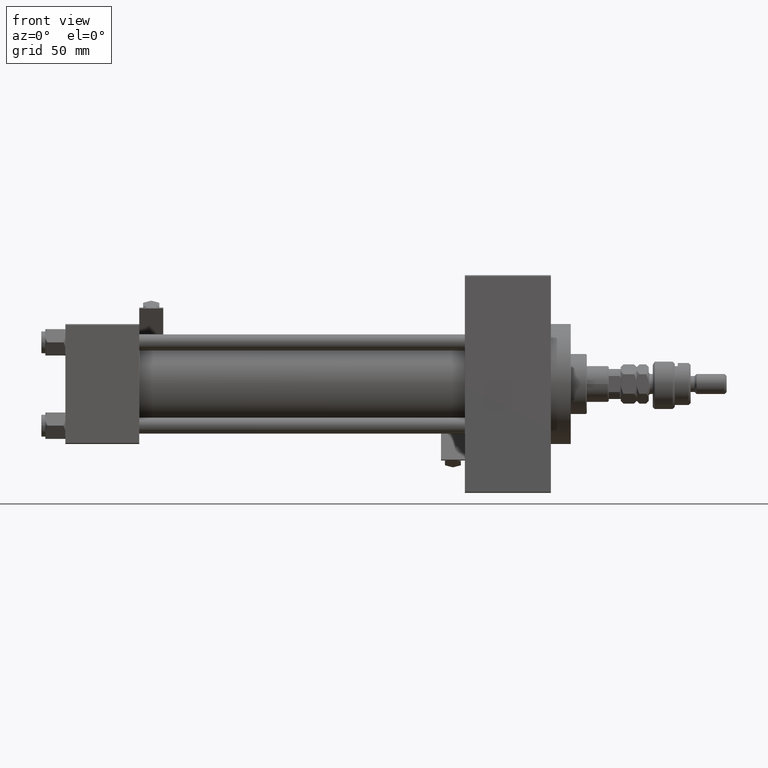
[diagram: clean part render]
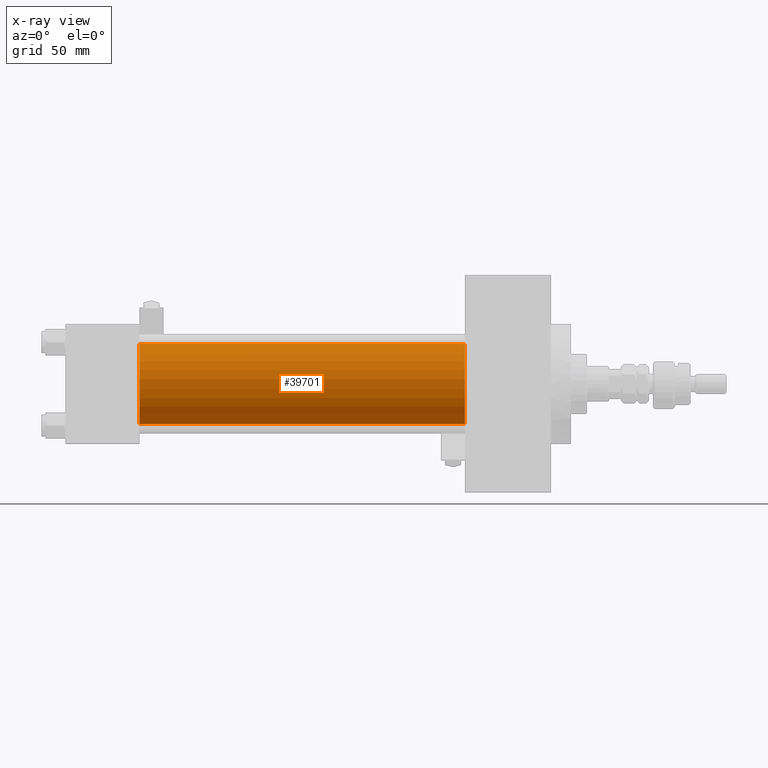
[diagram: x-ray — body ghosted, one internal face saturated and labeled with its STEP entity id]
A machine part, front view, then the same camera in x-ray: the body is ghosted and one INTERNAL B-rep face — a face not visible from any outside direction — is saturated and labeled: STEP entity #39701.
In plain terms, the highlighted cylindrical surface (partial cylindrical patch) has radius 20 mm, axis along (-1, -0, -0).
Its self-contained STEP definition (entity closure, byte-faithful):
#1318 = ORIENTED_EDGE ( 'NONE', *, *, #37668, .F. ) ;
#2734 = DIRECTION ( 'NONE',  ( 1.000000000000000000, 0.000000000000000000, 0.000000000000000000 ) ) ;
#2890 = EDGE_CURVE ( 'NONE', #38231, #52636, #18534, .T. ) ;
#3430 = CIRCLE ( 'NONE', #36964, 20.00000000000000000 ) ;
#3612 = CARTESIAN_POINT ( 'NONE',  ( 37.00000000000000000, -1.527916156705042519E-16, -20.00000000000000000 ) ) ;
#6425 = ORIENTED_EDGE ( 'NONE', *, *, #17631, .F. ) ;
#6834 = CARTESIAN_POINT ( 'NONE',  ( 200.0000000000000000, -1.527916156705042519E-16, -20.00000000000000000 ) ) ;
#7760 = VECTOR ( 'NONE', #35620, 1000.000000000000000 ) ;
#8912 = CARTESIAN_POINT ( 'NONE',  ( 37.00000000000000000, -2.602085213965210642E-15, 0.000000000000000000 ) ) ;
#9311 = CARTESIAN_POINT ( 'NONE',  ( 200.0000000000000000, -2.602085213965210642E-15, 0.000000000000000000 ) ) ;
#9999 = DIRECTION ( 'NONE',  ( 0.000000000000000000, 0.000000000000000000, -1.000000000000000000 ) ) ;
#12659 = DIRECTION ( 'NONE',  ( 1.000000000000000000, 0.000000000000000000, 0.000000000000000000 ) ) ;
#13587 = DIRECTION ( 'NONE',  ( -1.000000000000000000, -0.000000000000000000, -0.000000000000000000 ) ) ;
#15166 = LINE ( 'NONE', #6834, #7760 ) ;
#17234 = AXIS2_PLACEMENT_3D ( 'NONE', #9311, #13587, #30019 ) ;
#17631 = EDGE_CURVE ( 'NONE', #38231, #31323, #26491, .T. ) ;
#17736 = EDGE_CURVE ( 'NONE', #52636, #50733, #15166, .T. ) ;
#18534 = CIRCLE ( 'NONE', #48610, 20.00000000000000000 ) ;
#22056 = ORIENTED_EDGE ( 'NONE', *, *, #2890, .T. ) ;
#22538 = CARTESIAN_POINT ( 'NONE',  ( 200.0000000000000000, -1.527916156705042519E-16, -20.00000000000000000 ) ) ;
#24651 = ORIENTED_EDGE ( 'NONE', *, *, #17736, .T. ) ;
#25929 = CARTESIAN_POINT ( 'NONE',  ( 200.0000000000000000, -2.602085213965210642E-15, 20.00000000000000000 ) ) ;
#26491 = LINE ( 'NONE', #42886, #52405 ) ;
#30019 = DIRECTION ( 'NONE',  ( 0.000000000000000000, 0.000000000000000000, 1.000000000000000000 ) ) ;
#31323 = VERTEX_POINT ( 'NONE', #31877 ) ;
#31877 = CARTESIAN_POINT ( 'NONE',  ( 37.00000000000000000, -2.602085213965210642E-15, 20.00000000000000000 ) ) ;
#33803 = FACE_OUTER_BOUND ( 'NONE', #51244, .T. ) ;
#35620 = DIRECTION ( 'NONE',  ( -1.000000000000000000, -0.000000000000000000, -0.000000000000000000 ) ) ;
#36892 = DIRECTION ( 'NONE',  ( 0.000000000000000000, 0.000000000000000000, -1.000000000000000000 ) ) ;
#36964 = AXIS2_PLACEMENT_3D ( 'NONE', #8912, #12659, #36892 ) ;
#37668 = EDGE_CURVE ( 'NONE', #31323, #50733, #3430, .T. ) ;
#38231 = VERTEX_POINT ( 'NONE', #25929 ) ;
#39302 = CARTESIAN_POINT ( 'NONE',  ( 200.0000000000000000, -2.602085213965210642E-15, 0.000000000000000000 ) ) ;
#39701 = ADVANCED_FACE ( 'NONE', ( #33803 ), #46154, .F. ) ;
#42886 = CARTESIAN_POINT ( 'NONE',  ( 200.0000000000000000, -2.602085213965210642E-15, 20.00000000000000000 ) ) ;
#46154 = CYLINDRICAL_SURFACE ( 'NONE', #17234, 20.00000000000000000 ) ;
#48610 = AXIS2_PLACEMENT_3D ( 'NONE', #39302, #2734, #9999 ) ;
#50733 = VERTEX_POINT ( 'NONE', #3612 ) ;
#51244 = EDGE_LOOP ( 'NONE', ( #22056, #24651, #1318, #6425 ) ) ;
#51475 = DIRECTION ( 'NONE',  ( -1.000000000000000000, -0.000000000000000000, -0.000000000000000000 ) ) ;
#52405 = VECTOR ( 'NONE', #51475, 1000.000000000000000 ) ;
#52636 = VERTEX_POINT ( 'NONE', #22538 ) ;